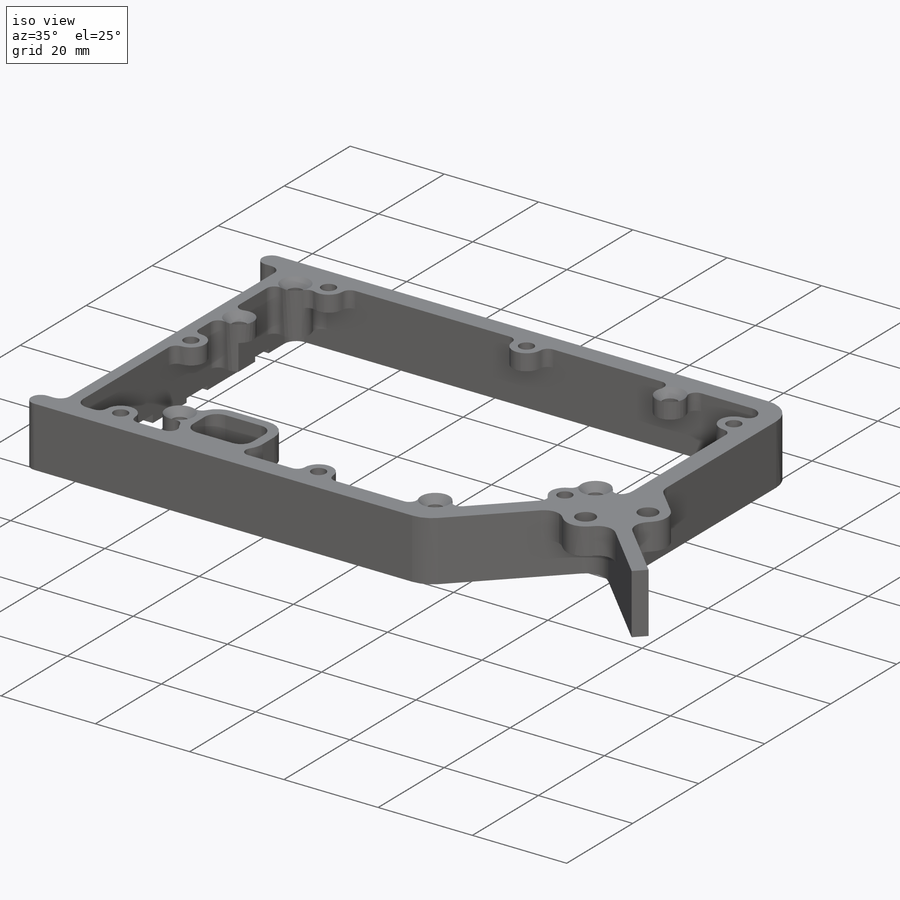
[diagram: iso view]
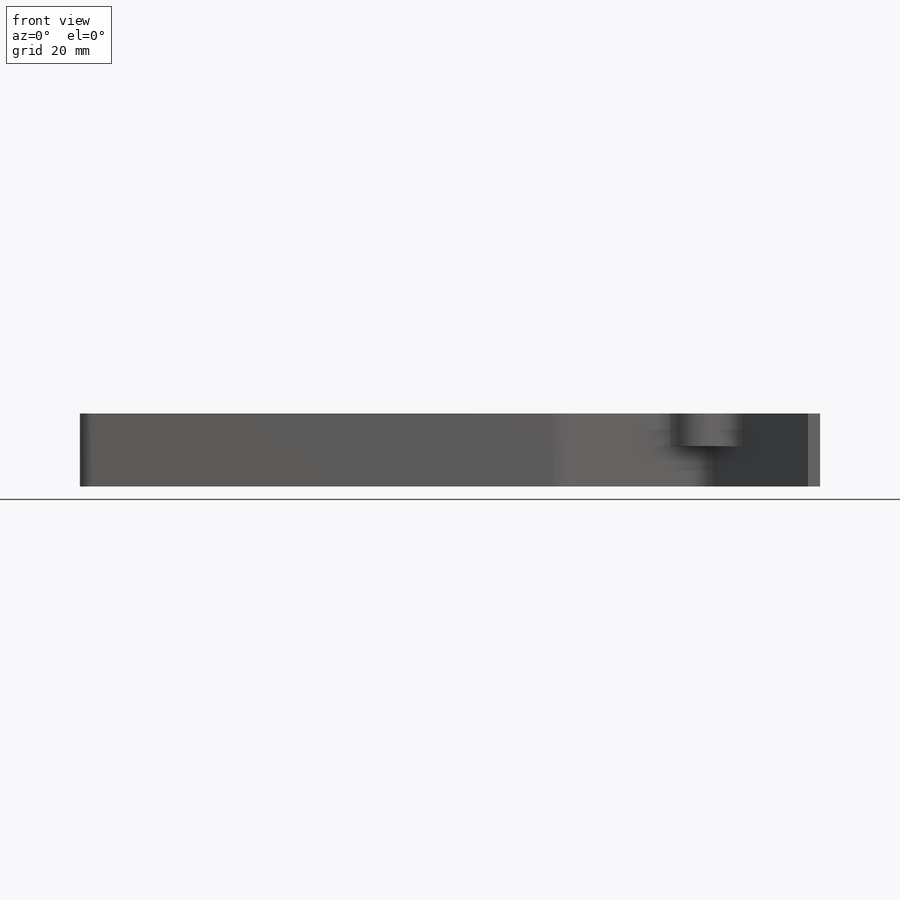
[diagram: front view]
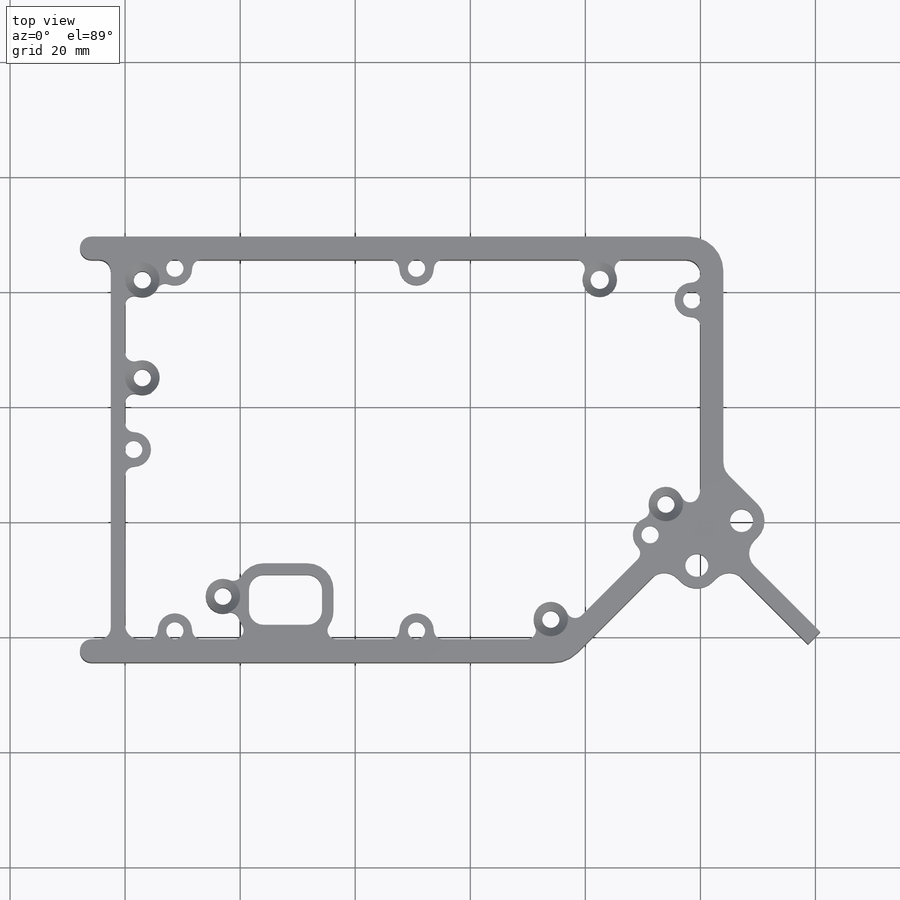
[diagram: top view]
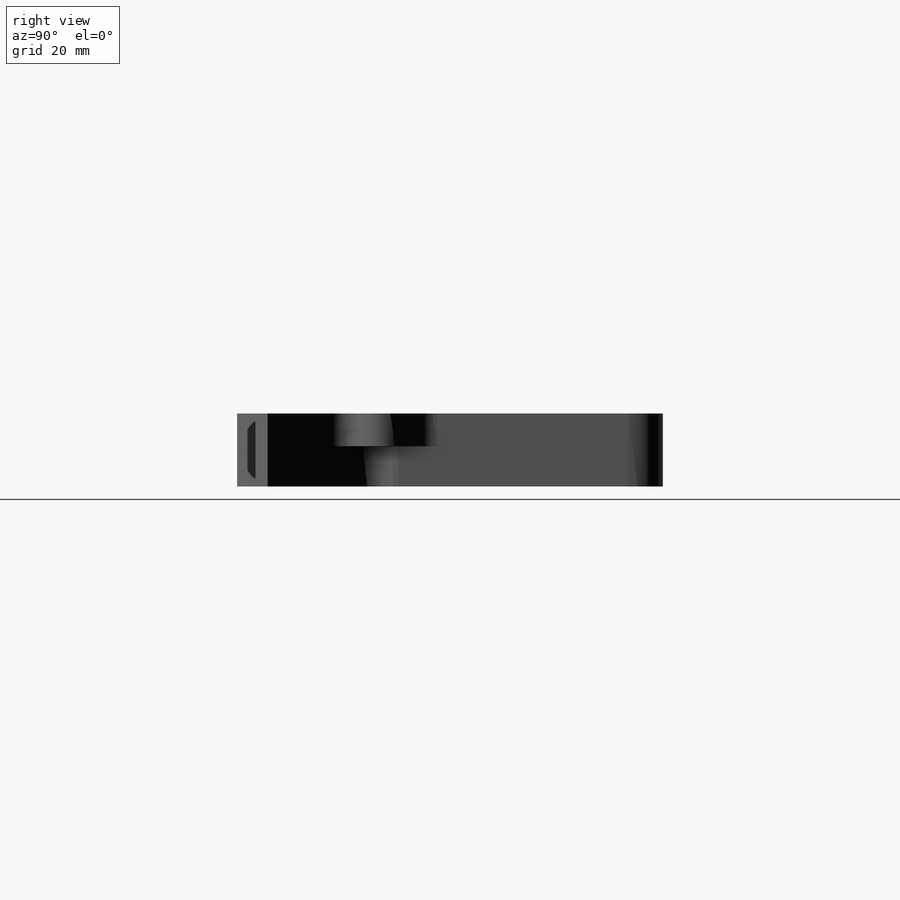
[diagram: right view]
SOLIDWORKS PART (.sldprt)
format: sldprt  version: not decoded by parser v0  size: 937,472 bytes
history: native  units: mm
features: sketch x20, cut_extrude x13, extrude x7, fillet x5, material x1, chamfer x1 (+11 scaffold rows collapsed)
feature tree (58):
  scaffold x11  (default folders/planes/origin — collapsed)
  material  "Material <not specified>"
  sketch  "Sketch1"  dims[D1=101.6mm D2=152.4mm]
  extrude  "Boss-Extrude1"  Depth=12.7mm
  sketch  "Sketch2"  dims[c1.D3=~11.927507mm c1.D1=0.5mm c1.D2=0.5mm c2.D3=~33.698484mm c2.D1=1.0mm]
  cut_extrude  "Cut-Extrude1"  [1 undecoded]
  sketch  "Sketch3"  dims[c1.D1=4.0mm c1.D2=4.0mm c2.D1=4.0mm c2.D2=4.0mm]
  cut_extrude  "Cut-Extrude2"  Depth=12.7mm
  sketch  "Sketch4"  dims[D1=2.5mm]
  cut_extrude  "Cut-Extrude3"  [1 undecoded]
  sketch  "Sketch5"
  cut_extrude  "Cut-Extrude4"  [1 undecoded]
  sketch  "Sketch6"  dims[c1.D1=4.0mm c1.D2=~33.698484mm c2.D2=~3.782614deg c3.D2=4.0mm]
  cut_extrude  "Cut-Extrude5"  [1 undecoded]
  fillet  "Fillet1"  Radius=2mm
  fillet  "Fillet2"  Radius=2mm
  fillet  "Fillet3"  Radius=2mm
  fillet  "Fillet4"  Radius=6mm
  sketch  "Sketch7"  dims[c1.D3=~10.692559mm c1.D6=~9.342966mm c1.D7=~5.851415mm c1.D2=~5.851415mm c1.D1=0.5mm c2.D2=0.5mm c2.D3=0.5mm c2.D4=0.5mm c2.D5=0.5mm c2.D6=0.5mm c2.D7=0.5mm c2.D8=0.5mm c2.D9=0.5mm c2.D10=~2.180698mm c2.D11=~1.090349mm c3.D10=0.5mm c3.D11=0.5mm c3.D12=0.5mm c3.D3=0.5mm c3.D6=0.5mm c3.D2=0.5mm c3.D1=0.0mm]
  cut_extrude  "Cut-Extrude6"  Depth=10mm
  sketch  "Sketch9"  dims[D1=6.0mm D2=1.5875mm D3=2.0mm]
  extrude  "Boss-Extrude2"  [1 undecoded]
  sketch  "Sketch15"  dims[c1.D1=2.0mm c1.D2=2.0mm c1.D3=2.0mm c2.D1=2.0mm]
  extrude  "Boss-Extrude5"  [1 undecoded]
  sketch  "Sketch10"  dims[D1=3.5mm]
  cut_extrude  "Cut-Extrude7"  [1 undecoded]
  sketch  "Sketch11"
  cut_extrude  "Cut-Extrude8"  Depth=10mm
  sketch  "Sketch12"  dims[D1=6.0mm D2=3.0mm D3=2.0mm D4=42.0mm]
  extrude  "Boss-Extrude3"  [1 undecoded]
  sketch  "Sketch14"
  extrude  "Boss-Extrude4"  [1 undecoded]
  chamfer  "Chamfer1"  Distance=1.8mm Angle=45deg
  sketch  "Sketch17"  dims[D1=3.0mm D2=12.0mm]
  extrude  "Boss-Extrude6"  [1 undecoded]
  sketch  "Sketch18"  dims[D1=8.0mm]
  extrude  "Boss-Extrude7"  [1 undecoded]
  sketch  "Sketch19"
  cut_extrude  "Cut-Extrude10"  Depth=6mm
  sketch  "Sketch20"  dims[D1=4.5mm]
  cut_extrude  "Cut-Extrude11"  Depth=7mm
  fillet  "Fillet5"  Radius=3.175mm
  sketch  "Sketch21"  dims[D1=3.2mm D2=8.0mm]
  cut_extrude  "Cut-Extrude12"  Depth=10mm
  sketch  "Sketch22"  dims[D1=3.17mm D2=6.0mm]
  cut_extrude  "Cut-Extrude13"  Depth=10mm
  sketch  "Sketch23"  dims[D1=7.5mm]
  cut_extrude  "Cut-Extrude14"  Depth=12.5mm
decode coverage: 31 of 46 modeling features carry decoded parameters
note: ~ marks probable driven/reference dimensions
note: 11 parameter values undecoded
summary: no parameter record found for 11 features
note: suppression state not decoded; provenance and decode notes live in map.json
